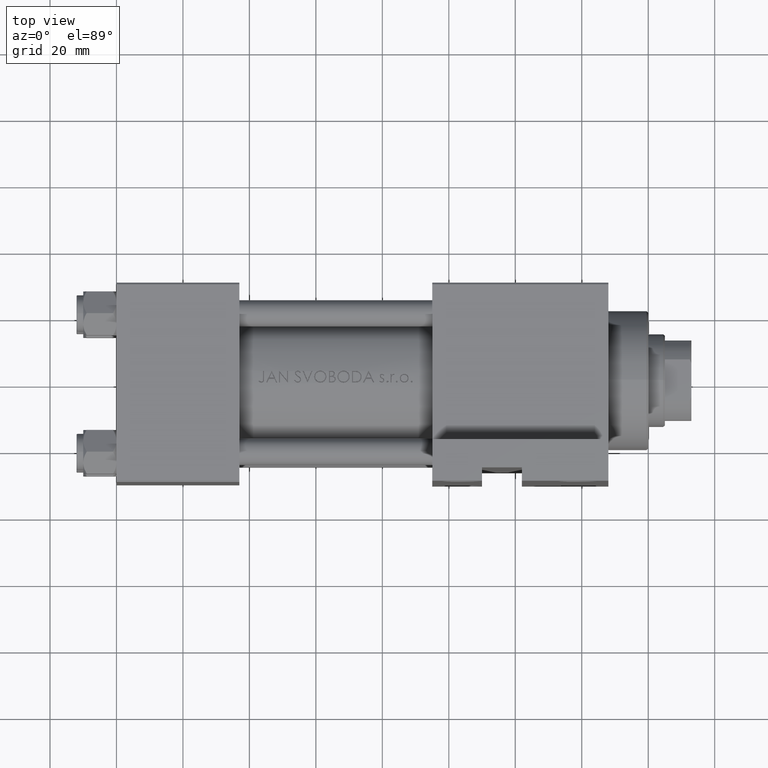
[diagram: clean part render]
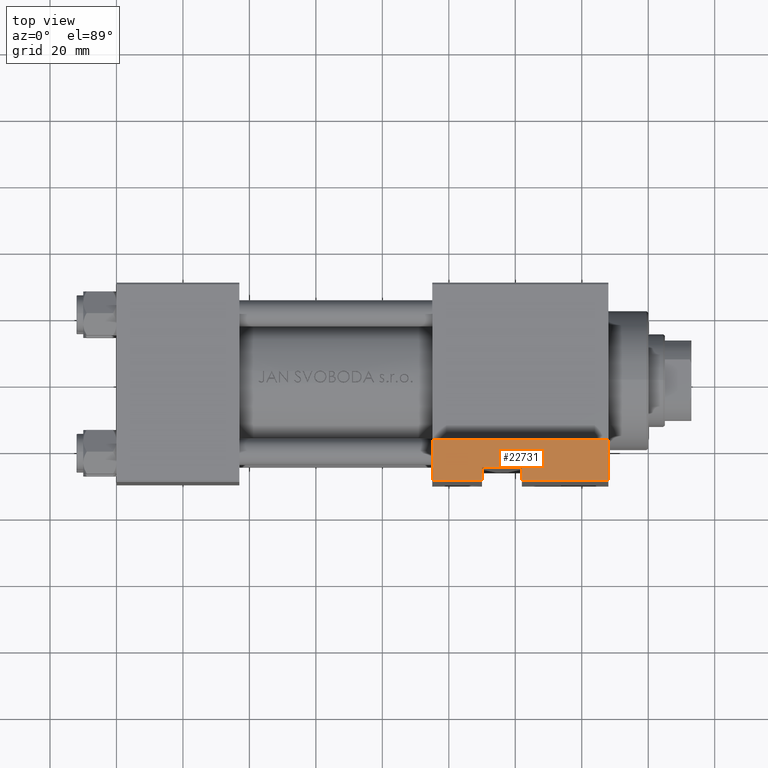
[diagram: same view with one face highlighted and labeled with its STEP entity id]
A machine part, top view. The second image highlights one B-rep face of the part: STEP entity #22731.
In plain terms, the highlighted planar face has unit normal (0, 0, 1).
Its self-contained STEP definition (entity closure, byte-faithful):
#36 = EDGE_CURVE ( 'NONE', #1108, #13778, #31103, .T. ) ;
#483 = LINE ( 'NONE', #4910, #48663 ) ;
#496 = CARTESIAN_POINT ( 'NONE',  ( 109.9999999999999858, -51.49999999999999289, -25.99999999999999645 ) ) ;
#1108 = VERTEX_POINT ( 'NONE', #24051 ) ;
#1507 = DIRECTION ( 'NONE',  ( -1.000000000000000000, -0.000000000000000000, -0.000000000000000000 ) ) ;
#3616 = DIRECTION ( 'NONE',  ( -1.000000000000000000, -0.000000000000000000, -0.000000000000000000 ) ) ;
#3974 = ORIENTED_EDGE ( 'NONE', *, *, #19902, .F. ) ;
#4910 = CARTESIAN_POINT ( 'NONE',  ( 148.0000000000000000, -51.50000000000000711, -17.49999999999999645 ) ) ;
#5747 = EDGE_CURVE ( 'NONE', #36970, #13778, #10101, .T. ) ;
#6108 = AXIS2_PLACEMENT_3D ( 'NONE', #10709, #18358, #14171 ) ;
#6753 = VERTEX_POINT ( 'NONE', #46914 ) ;
#6781 = VECTOR ( 'NONE', #3616, 1000.000000000000000 ) ;
#7886 = VECTOR ( 'NONE', #1507, 1000.000000000000000 ) ;
#8026 = ORIENTED_EDGE ( 'NONE', *, *, #41494, .F. ) ;
#8597 = VECTOR ( 'NONE', #18054, 1000.000000000000000 ) ;
#9414 = CARTESIAN_POINT ( 'NONE',  ( 94.99999999999998579, -51.50000000000000711, -29.99999999999999645 ) ) ;
#10101 = LINE ( 'NONE', #17992, #18278 ) ;
#10647 = LINE ( 'NONE', #40990, #8597 ) ;
#10709 = CARTESIAN_POINT ( 'NONE',  ( 94.99999999999998579, -51.50000000000000711, -17.49999999999999645 ) ) ;
#11022 = LINE ( 'NONE', #37427, #6781 ) ;
#11199 = CARTESIAN_POINT ( 'NONE',  ( 121.9999999999999858, -51.49999999999999289, -29.99999999999999645 ) ) ;
#13778 = VERTEX_POINT ( 'NONE', #11199 ) ;
#14036 = EDGE_CURVE ( 'NONE', #21385, #28749, #48144, .T. ) ;
#14171 = DIRECTION ( 'NONE',  ( 0.000000000000000000, -0.000000000000000000, -1.000000000000000000 ) ) ;
#15970 = CARTESIAN_POINT ( 'NONE',  ( 148.0000000000000000, -51.50000000000000711, -17.49999999999999645 ) ) ;
#17417 = ORIENTED_EDGE ( 'NONE', *, *, #45369, .T. ) ;
#17992 = CARTESIAN_POINT ( 'NONE',  ( 121.9999999999999858, -51.49999999999999289, -25.99999999999999645 ) ) ;
#18054 = DIRECTION ( 'NONE',  ( 0.000000000000000000, 0.000000000000000000, -1.000000000000000000 ) ) ;
#18278 = VECTOR ( 'NONE', #40211, 1000.000000000000000 ) ;
#18358 = DIRECTION ( 'NONE',  ( 0.000000000000000000, -1.000000000000000000, 0.000000000000000000 ) ) ;
#19902 = EDGE_CURVE ( 'NONE', #6753, #26793, #11022, .T. ) ;
#19967 = DIRECTION ( 'NONE',  ( 0.000000000000000000, 0.000000000000000000, -1.000000000000000000 ) ) ;
#20013 = CARTESIAN_POINT ( 'NONE',  ( 94.99999999999998579, -51.50000000000000711, -29.99999999999999645 ) ) ;
#20710 = EDGE_LOOP ( 'NONE', ( #31854, #38353, #33577, #45240, #17417, #3974, #8026, #24943 ) ) ;
#21264 = CARTESIAN_POINT ( 'NONE',  ( 94.99999999999998579, -51.50000000000000711, -17.49999999999999645 ) ) ;
#21385 = VERTEX_POINT ( 'NONE', #15970 ) ;
#22731 = ADVANCED_FACE ( 'NONE', ( #25258 ), #47948, .T. ) ;
#23473 = CARTESIAN_POINT ( 'NONE',  ( 109.9999999999999858, -51.49999999999999289, -25.99999999999999645 ) ) ;
#24051 = CARTESIAN_POINT ( 'NONE',  ( 148.0000000000000000, -51.50000000000000711, -29.99999999999999645 ) ) ;
#24943 = ORIENTED_EDGE ( 'NONE', *, *, #27579, .F. ) ;
#25174 = EDGE_CURVE ( 'NONE', #21385, #1108, #483, .T. ) ;
#25258 = FACE_OUTER_BOUND ( 'NONE', #20710, .T. ) ;
#26793 = VERTEX_POINT ( 'NONE', #9414 ) ;
#27579 = EDGE_CURVE ( 'NONE', #36970, #47367, #44735, .T. ) ;
#28749 = VERTEX_POINT ( 'NONE', #21264 ) ;
#30374 = CARTESIAN_POINT ( 'NONE',  ( 94.99999999999998579, -51.50000000000000711, -17.49999999999999645 ) ) ;
#31103 = LINE ( 'NONE', #20013, #7886 ) ;
#31362 = LINE ( 'NONE', #23473, #39917 ) ;
#31416 = VECTOR ( 'NONE', #48665, 1000.000000000000000 ) ;
#31854 = ORIENTED_EDGE ( 'NONE', *, *, #5747, .T. ) ;
#32916 = CARTESIAN_POINT ( 'NONE',  ( 109.9999999999999858, -51.49999999999999289, -25.99999999999999645 ) ) ;
#33577 = ORIENTED_EDGE ( 'NONE', *, *, #25174, .F. ) ;
#36970 = VERTEX_POINT ( 'NONE', #38247 ) ;
#37427 = CARTESIAN_POINT ( 'NONE',  ( 94.99999999999998579, -51.50000000000000711, -29.99999999999999645 ) ) ;
#38247 = CARTESIAN_POINT ( 'NONE',  ( 121.9999999999999858, -51.50000000000000711, -25.99999999999999645 ) ) ;
#38353 = ORIENTED_EDGE ( 'NONE', *, *, #36, .F. ) ;
#39275 = DIRECTION ( 'NONE',  ( -0.000000000000000000, -0.000000000000000000, -1.000000000000000000 ) ) ;
#39917 = VECTOR ( 'NONE', #39275, 1000.000000000000000 ) ;
#40211 = DIRECTION ( 'NONE',  ( -0.000000000000000000, -0.000000000000000000, -1.000000000000000000 ) ) ;
#40990 = CARTESIAN_POINT ( 'NONE',  ( 94.99999999999998579, -51.50000000000000711, -17.49999999999999645 ) ) ;
#41494 = EDGE_CURVE ( 'NONE', #47367, #6753, #31362, .T. ) ;
#44735 = LINE ( 'NONE', #32916, #31416 ) ;
#45240 = ORIENTED_EDGE ( 'NONE', *, *, #14036, .T. ) ;
#45369 = EDGE_CURVE ( 'NONE', #28749, #26793, #10647, .T. ) ;
#46914 = CARTESIAN_POINT ( 'NONE',  ( 109.9999999999999858, -51.49999999999999289, -29.99999999999999645 ) ) ;
#47367 = VERTEX_POINT ( 'NONE', #496 ) ;
#47654 = VECTOR ( 'NONE', #48383, 1000.000000000000000 ) ;
#47948 = PLANE ( 'NONE',  #6108 ) ;
#48144 = LINE ( 'NONE', #30374, #47654 ) ;
#48383 = DIRECTION ( 'NONE',  ( -1.000000000000000000, -0.000000000000000000, -0.000000000000000000 ) ) ;
#48663 = VECTOR ( 'NONE', #19967, 1000.000000000000000 ) ;
#48665 = DIRECTION ( 'NONE',  ( -1.000000000000000000, -0.000000000000000000, -0.000000000000000000 ) ) ;